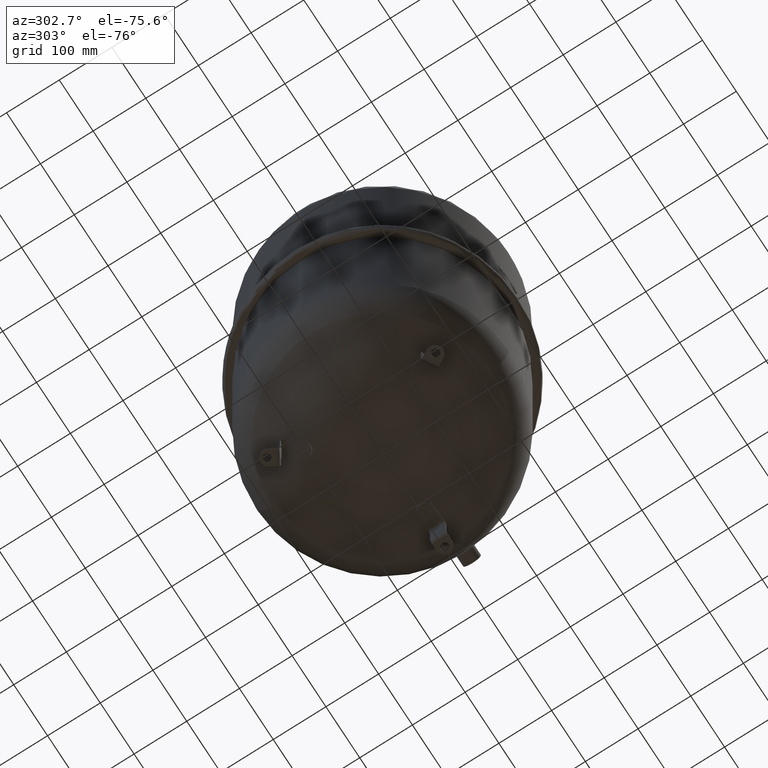
[diagram: clean part render]
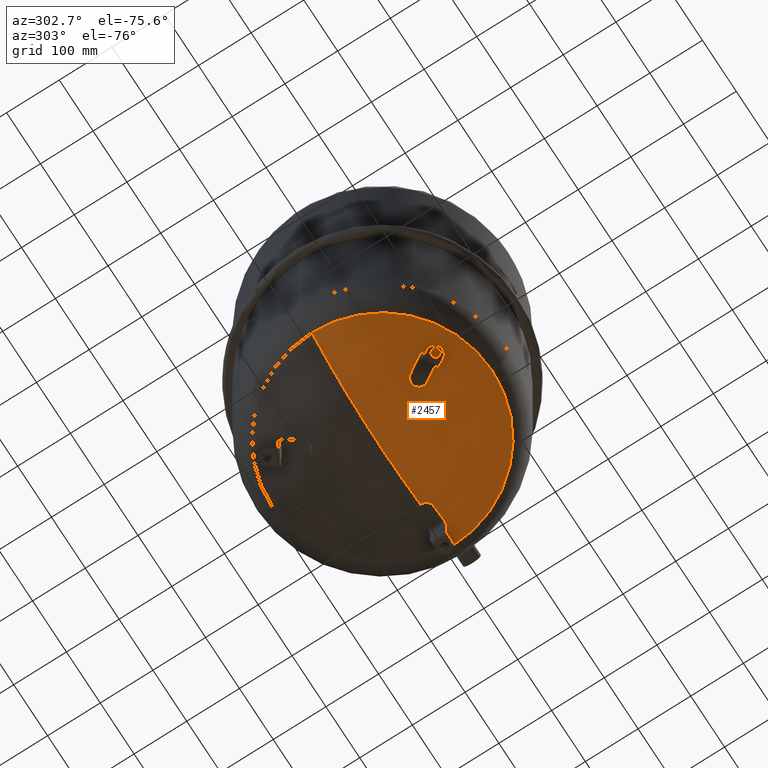
[diagram: same view with one face highlighted and labeled with its STEP entity id]
A machine part, auxiliary view. The second image highlights one B-rep face of the part: STEP entity #2457.
In plain terms, the highlighted spherical surface has radius 354 mm.
Its self-contained STEP definition (entity closure, byte-faithful):
#2379=CARTESIAN_POINT('',(0.0,-208.57297297297296,86.969730718555795));
#2380=VERTEX_POINT('',#2379);
#2405=CARTESIAN_POINT('',(-208.57297297297296,-1.248584E-014,86.969730718555837));
#2406=VERTEX_POINT('',#2405);
#2414=CARTESIAN_POINT('',(0.0,-1.248584E-014,86.969730718555837));
#2415=DIRECTION('',(0.0,0.0,1.0));
#2416=DIRECTION('',(-1.0,0.0,0.0));
#2417=AXIS2_PLACEMENT_3D('',#2414,#2415,#2416);
#2418=CIRCLE('',#2417,208.57297297297296);
#2419=EDGE_CURVE('',#2406,#2380,#2418,.T.);
#2424=CARTESIAN_POINT('',(0.0,-6.502875E-014,373.0));
#2425=DIRECTION('',(0.0,0.0,1.0));
#2426=DIRECTION('',(1.0,0.0,0.0));
#2427=AXIS2_PLACEMENT_3D('',#2424,#2425,#2426);
#2428=SPHERICAL_SURFACE('',#2427,354.0);
#2429=CARTESIAN_POINT('',(208.57297297297296,-6.502875E-014,86.969730718555866));
#2430=VERTEX_POINT('',#2429);
#2431=CARTESIAN_POINT('',(-2.167553E-014,-6.502875E-014,19.0));
#2432=VERTEX_POINT('',#2431);
#2433=CARTESIAN_POINT('',(0.0,-6.502875E-014,373.0));
#2434=DIRECTION('',(0.0,1.0,0.0));
#2435=DIRECTION('',(1.0,0.0,0.0));
#2436=AXIS2_PLACEMENT_3D('',#2433,#2434,#2435);
#2437=CIRCLE('',#2436,354.0);
#2438=EDGE_CURVE('',#2430,#2432,#2437,.T.);
#2439=ORIENTED_EDGE('',*,*,#2438,.F.);
#2440=CARTESIAN_POINT('',(0.0,-1.248584E-014,86.969730718555837));
#2441=DIRECTION('',(0.0,0.0,1.0));
#2442=DIRECTION('',(-1.0,0.0,0.0));
#2443=AXIS2_PLACEMENT_3D('',#2440,#2441,#2442);
#2444=CIRCLE('',#2443,208.57297297297296);
#2445=EDGE_CURVE('',#2380,#2430,#2444,.T.);
#2446=ORIENTED_EDGE('',*,*,#2445,.F.);
#2447=ORIENTED_EDGE('',*,*,#2419,.F.);
#2448=CARTESIAN_POINT('',(0.0,-6.502875E-014,373.0));
#2449=DIRECTION('',(0.0,-1.0,0.0));
#2450=DIRECTION('',(-1.0,0.0,0.0));
#2451=AXIS2_PLACEMENT_3D('',#2448,#2449,#2450);
#2452=CIRCLE('',#2451,354.0);
#2453=EDGE_CURVE('',#2406,#2432,#2452,.T.);
#2454=ORIENTED_EDGE('',*,*,#2453,.T.);
#2455=EDGE_LOOP('',(#2439,#2446,#2447,#2454));
#2456=FACE_OUTER_BOUND('',#2455,.T.);
#2457=ADVANCED_FACE('',(#2456),#2428,.T.);